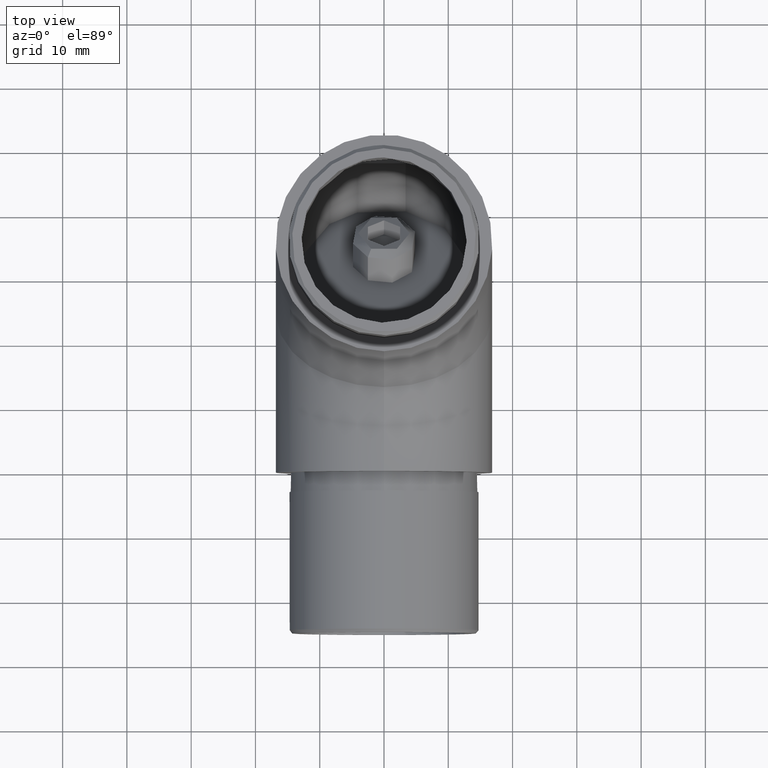
[diagram: clean part render]
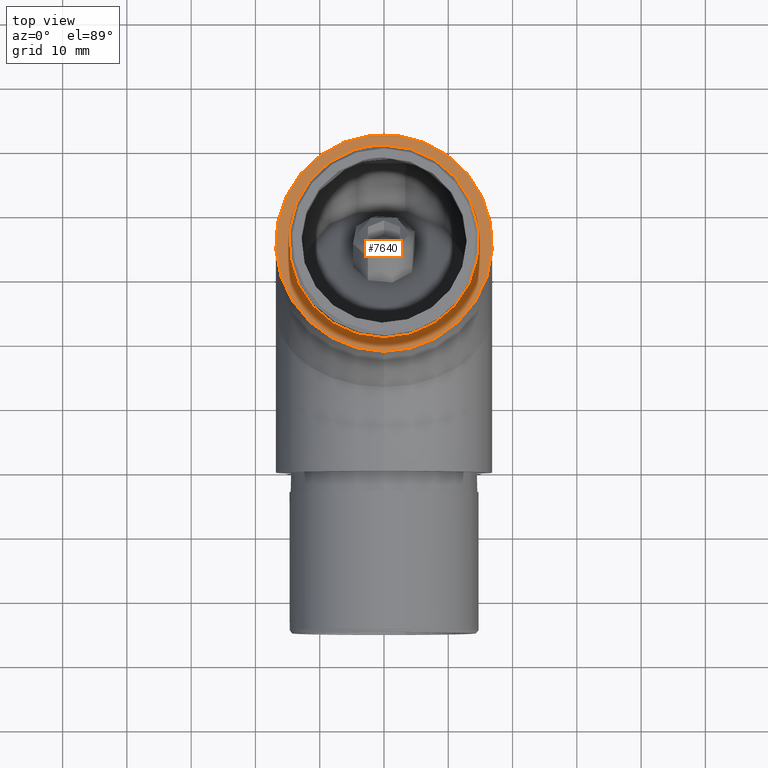
[diagram: same view with one face highlighted and labeled with its STEP entity id]
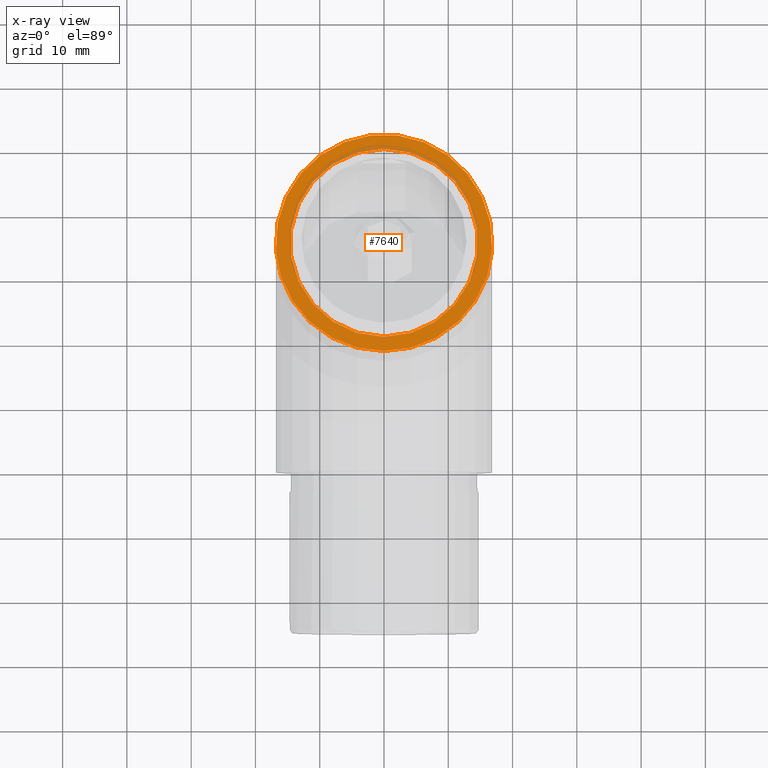
[diagram: x-ray of the same camera — body ghosted, the highlighted face saturated]
A machine part, top view. The second image highlights one B-rep face of the part: STEP entity #7640.
The next image is the same camera in x-ray: the body ghosted, the highlighted face saturated — about 11% of this face is hidden behind the body in this view.
In plain terms, the highlighted planar face has unit normal (0, -0, -1).
Its self-contained STEP definition (entity closure, byte-faithful):
#1103 = EDGE_LOOP ( 'NONE', ( #4603 ) ) ;
#1282 = DIRECTION ( 'NONE',  ( 0.0000000000000000000, 1.000000000000000000, 0.0000000000000000000 ) ) ;
#1879 = PLANE ( 'NONE',  #11187 ) ;
#3161 = DIRECTION ( 'NONE',  ( -0.0000000000000000000, -1.000000000000000000, -0.0000000000000000000 ) ) ;
#3211 = DIRECTION ( 'NONE',  ( 0.0000000000000000000, 1.000000000000000000, 0.0000000000000000000 ) ) ;
#4434 = DIRECTION ( 'NONE',  ( 0.0000000000000000000, 0.0000000000000000000, 1.000000000000000000 ) ) ;
#4603 = ORIENTED_EDGE ( 'NONE', *, *, #14124, .F. ) ;
#6573 = AXIS2_PLACEMENT_3D ( 'NONE', #12738, #3161, #4434 ) ;
#7640 = ADVANCED_FACE ( 'NONE', ( #13822, #11425 ), #1879, .F. ) ;
#7693 = DIRECTION ( 'NONE',  ( 0.0000000000000000000, -0.0000000000000000000, 1.000000000000000000 ) ) ;
#7705 = VERTEX_POINT ( 'NONE', #8251 ) ;
#8251 = CARTESIAN_POINT ( 'NONE',  ( 0.0000000000000000000, 0.0000000000000000000, 14.60000000000000100 ) ) ;
#8870 = ORIENTED_EDGE ( 'NONE', *, *, #10771, .F. ) ;
#9939 = EDGE_LOOP ( 'NONE', ( #8870 ) ) ;
#10166 = CIRCLE ( 'NONE', #12238, 16.85000000000000100 ) ;
#10271 = CIRCLE ( 'NONE', #6573, 14.60000000000000100 ) ;
#10303 = CARTESIAN_POINT ( 'NONE',  ( 0.0000000000000000000, 0.0000000000000000000, 0.0000000000000000000 ) ) ;
#10771 = EDGE_CURVE ( 'NONE', #7705, #7705, #10271, .T. ) ;
#11187 = AXIS2_PLACEMENT_3D ( 'NONE', #10303, #3211, #7693 ) ;
#11425 = FACE_BOUND ( 'NONE', #9939, .T. ) ;
#12238 = AXIS2_PLACEMENT_3D ( 'NONE', #15322, #1282, #12879 ) ;
#12738 = CARTESIAN_POINT ( 'NONE',  ( 0.0000000000000000000, 0.0000000000000000000, 0.0000000000000000000 ) ) ;
#12879 = DIRECTION ( 'NONE',  ( 0.0000000000000000000, 0.0000000000000000000, 1.000000000000000000 ) ) ;
#13822 = FACE_OUTER_BOUND ( 'NONE', #1103, .T. ) ;
#14124 = EDGE_CURVE ( 'NONE', #15160, #15160, #10166, .T. ) ;
#14134 = CARTESIAN_POINT ( 'NONE',  ( 0.0000000000000000000, 0.0000000000000000000, 16.85000000000000100 ) ) ;
#15160 = VERTEX_POINT ( 'NONE', #14134 ) ;
#15322 = CARTESIAN_POINT ( 'NONE',  ( 0.0000000000000000000, 0.0000000000000000000, 0.0000000000000000000 ) ) ;